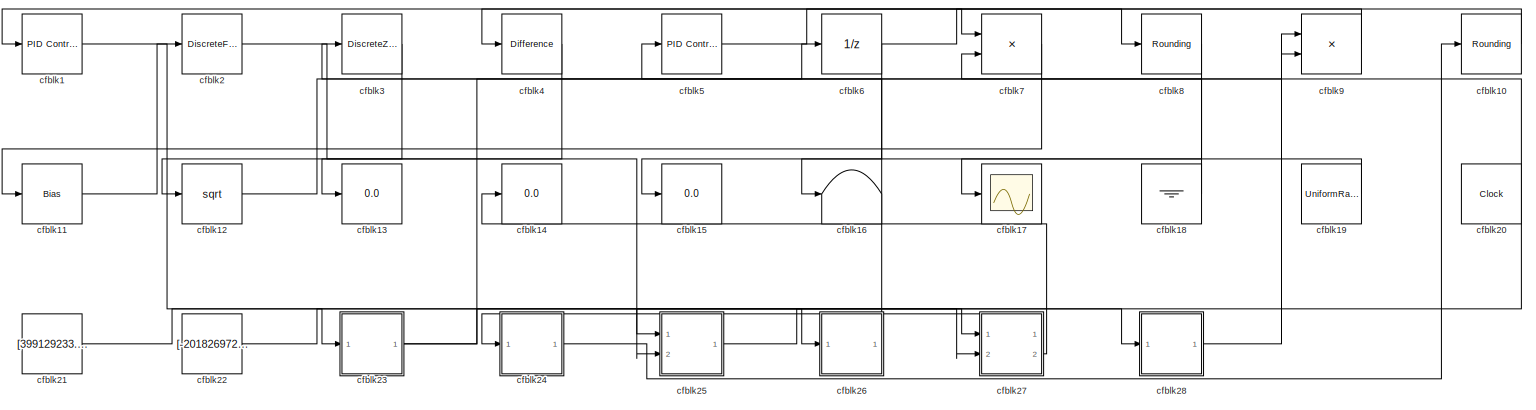
[diagram: root canvas - part 1/1, most of the canvas]
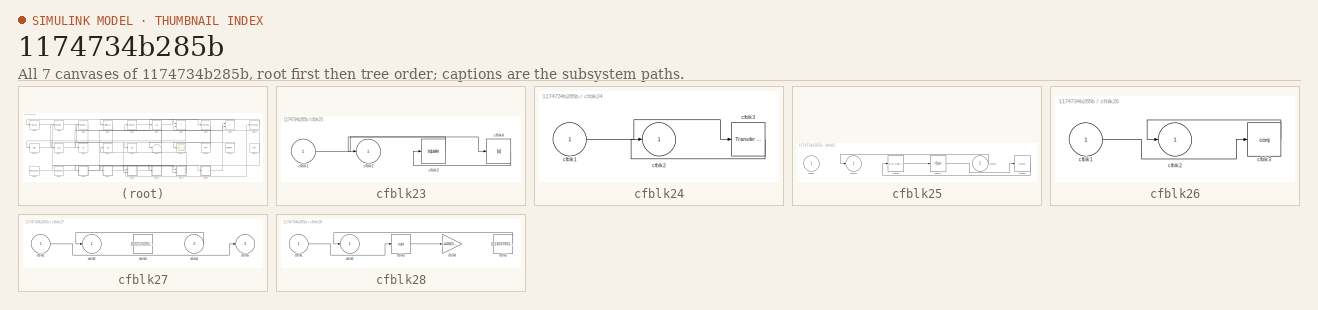
[diagram: thumbnail index - all 7 canvases of the model, root first then tree order]
MODEL slx_1174734b285b
KIND model
CONFIG AbsTol = auto
CONFIG EnableMultiTasking = off
CONFIG FixedStep = auto
CONFIG MaxStep = auto
CONFIG MinStep = auto
CONFIG RelTol = 1e-3
CONFIG SampleTimeConstraint = Unconstrained
CONFIG SolverName = VariableStepAuto
CONFIG StartTime = 0.0
CONFIG StopTime = 10.0
BLOCK [Reference] cfblk1  REF=slpidlib/PID Controller
  Ports = [1, 1]
  SourceBlock = slpidlib/PID Controller
  SourceProductBaseCode = SL
  SourceType = PID 1dof
BLOCK [Rounding] cfblk10
BLOCK [Bias] cfblk11
  Bias = [336940749.155554]
  SaturateOnIntegerOverflow = off
BLOCK [Sqrt] cfblk12
BLOCK [Display] cfblk13
  Decimation = 1
  Ports = [1]
BLOCK [Display] cfblk14
  Decimation = 1
  Ports = [1]
BLOCK [Display] cfblk15
  Decimation = 1
  Ports = [1]
BLOCK [Terminator] cfblk16
BLOCK [Scope] cfblk17
  Floating = off
  NumInputPorts = 1
  Ports = [1]
BLOCK [Ground] cfblk18
BLOCK [UniformRandomNumber] cfblk19
  Maximum = [6354930409.333557]
  Minimum = [-3384455096.536180]
  SampleTime = 0.1
  Seed = [29247997.000000]
BLOCK [DiscreteFilter] cfblk2
  InputPortMap = u0
  Ports = [1, 1]
  SampleTime = 1
BLOCK [Clock] cfblk20
BLOCK [Constant] cfblk21
  SampleTime = 1
  Value = [399129233.832271]
BLOCK [Constant] cfblk22
  SampleTime = 1
  Value = [-201826972.633649]
BLOCK [SubSystem] cfblk23
  Ports = [1, 1]
  RequestExecContextInheritance = off
BLOCK [Inport] cfblk23/cfblk1
BLOCK [Outport] cfblk23/cfblk2
BLOCK [Math] cfblk23/cfblk3
  Operator = square
  Ports = [1, 1]
BLOCK [Abs] cfblk23/cfblk4
  SaturateOnIntegerOverflow = off
BLOCK [SubSystem] cfblk24
  Ports = [1, 1]
  RequestExecContextInheritance = off
BLOCK [Inport] cfblk24/cfblk1
BLOCK [Outport] cfblk24/cfblk2
BLOCK [Reference] cfblk24/cfblk3  REF=simulink/Discrete/Transfer Fcn
Lead or Lag
  Ports = [1, 1]
  SourceBlock = simulink/Discrete/Transfer Fcn\nLead or Lag
  SourceProductBaseCode = SL
  SourceType = Lead or Lag Compensator
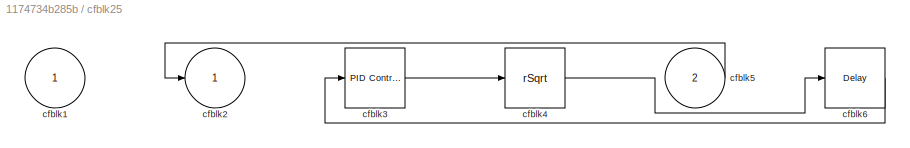
BLOCK [SubSystem] cfblk25
  Ports = [2, 1]
  RequestExecContextInheritance = off
BLOCK [Inport] cfblk25/cfblk1
BLOCK [Outport] cfblk25/cfblk2
BLOCK [Reference] cfblk25/cfblk3  REF=slpidlib/PID Controller
  Ports = [1, 1]
  SourceBlock = slpidlib/PID Controller
  SourceProductBaseCode = SL
  SourceType = PID 1dof
BLOCK [Sqrt] cfblk25/cfblk4
  AlgorithmType = Newton-Raphson
  Operator = rSqrt
BLOCK [Inport] cfblk25/cfblk5
  Port = 2
BLOCK [Delay] cfblk25/cfblk6
  InputPortMap = u0
  Ports = [1, 1]
  SampleTime = 1
BLOCK [SubSystem] cfblk26
  Ports = [1, 1]
  RequestExecContextInheritance = off
BLOCK [Inport] cfblk26/cfblk1
BLOCK [Outport] cfblk26/cfblk2
BLOCK [Math] cfblk26/cfblk3
  Operator = conj
  Ports = [1, 1]
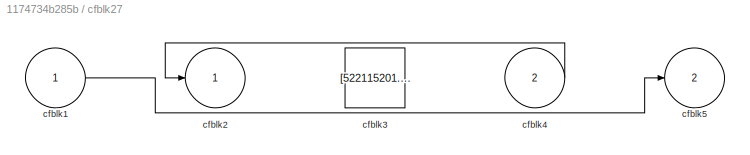
BLOCK [SubSystem] cfblk27
  Ports = [2, 2]
  RequestExecContextInheritance = off
BLOCK [Inport] cfblk27/cfblk1
BLOCK [Outport] cfblk27/cfblk2
BLOCK [Constant] cfblk27/cfblk3
  SampleTime = 1
  Value = [522115201.426466]
BLOCK [Inport] cfblk27/cfblk4
  Port = 2
BLOCK [Outport] cfblk27/cfblk5
  Port = 2
BLOCK [SubSystem] cfblk28
  Ports = [1, 1]
  RequestExecContextInheritance = off
BLOCK [Inport] cfblk28/cfblk1
BLOCK [Outport] cfblk28/cfblk2
BLOCK [Sqrt] cfblk28/cfblk3
BLOCK [Gain] cfblk28/cfblk4
  Gain = [-448650560.136890]
BLOCK [Constant] cfblk28/cfblk5
  SampleTime = 1
  Value = [513037955.003139]
BLOCK [DiscreteZeroPole] cfblk3
  Gain = 1
  Poles = [0 0.5]
BLOCK [Reference] cfblk4  REF=simulink/Discrete/Difference
  Ports = [1, 1]
  SourceBlock = simulink/Discrete/Difference
  SourceProductBaseCode = SL
  SourceType = Difference
BLOCK [Reference] cfblk5  REF=slpidlib/PID Controller
  Ports = [1, 1]
  SourceBlock = slpidlib/PID Controller
  SourceProductBaseCode = SL
  SourceType = PID 1dof
BLOCK [UnitDelay] cfblk6
  HasFrameUpgradeWarning = on
BLOCK [Product] cfblk7
  Inputs = **
  Ports = [2, 1]
BLOCK [Rounding] cfblk8
BLOCK [Product] cfblk9
  Inputs = **
  Ports = [2, 1]
LINE cfblk10:1 -> cfblk4:1
LINE cfblk11:1 -> cfblk2:1
LINE cfblk12:1 -> cfblk9:2
LINE cfblk18:1 -> cfblk7:2
LINE cfblk19:1 -> cfblk16:1
LINE cfblk1:1 -> cfblk27:2
NET cfblk20:1 -> cfblk25:2, cfblk3:1
LINE cfblk21:1 -> cfblk23:1
LINE cfblk22:1 -> cfblk26:1
LINE cfblk23/cfblk1:1 -> cfblk23/cfblk4:1
LINE cfblk23/cfblk3:1 -> cfblk23/cfblk2:1
LINE cfblk23/cfblk4:1 -> cfblk23/cfblk3:1
NET cfblk23:1 -> cfblk27:1, cfblk6:1
LINE cfblk24/cfblk1:1 -> cfblk24/cfblk3:1
LINE cfblk24/cfblk3:1 -> cfblk24/cfblk2:1
LINE cfblk24:1 -> cfblk10:1
LINE cfblk25/cfblk3:1 -> cfblk25/cfblk4:1
LINE cfblk25/cfblk4:1 -> cfblk25/cfblk6:1
LINE cfblk25/cfblk5:1 -> cfblk25/cfblk2:1
LINE cfblk25/cfblk6:1 -> cfblk25/cfblk3:1
LINE cfblk25:1 -> cfblk28:1
LINE cfblk26/cfblk1:1 -> cfblk26/cfblk3:1
LINE cfblk26/cfblk3:1 -> cfblk26/cfblk2:1
LINE cfblk26:1 -> cfblk5:1
LINE cfblk27/cfblk1:1 -> cfblk27/cfblk5:1
LINE cfblk27/cfblk4:1 -> cfblk27/cfblk2:1
LINE cfblk27:1 -> cfblk24:1
LINE cfblk27:2 -> cfblk14:1
LINE cfblk28/cfblk1:1 -> cfblk28/cfblk3:1
LINE cfblk28/cfblk3:1 -> cfblk28/cfblk4:1
LINE cfblk28/cfblk5:1 -> cfblk28/cfblk2:1
LINE cfblk28:1 -> cfblk9:1
LINE cfblk2:1 -> cfblk25:1
LINE cfblk3:1 -> cfblk12:1
LINE cfblk4:1 -> cfblk13:1
LINE cfblk5:1 -> cfblk7:1
NET cfblk6:1 -> cfblk15:1, cfblk8:1
LINE cfblk7:1 -> cfblk11:1
LINE cfblk8:1 -> cfblk17:1
LINE cfblk9:1 -> cfblk1:1
note: NET lines group one-source signal fan-out (src -> all destinations, sorted); 1:1 wires keep LINE
